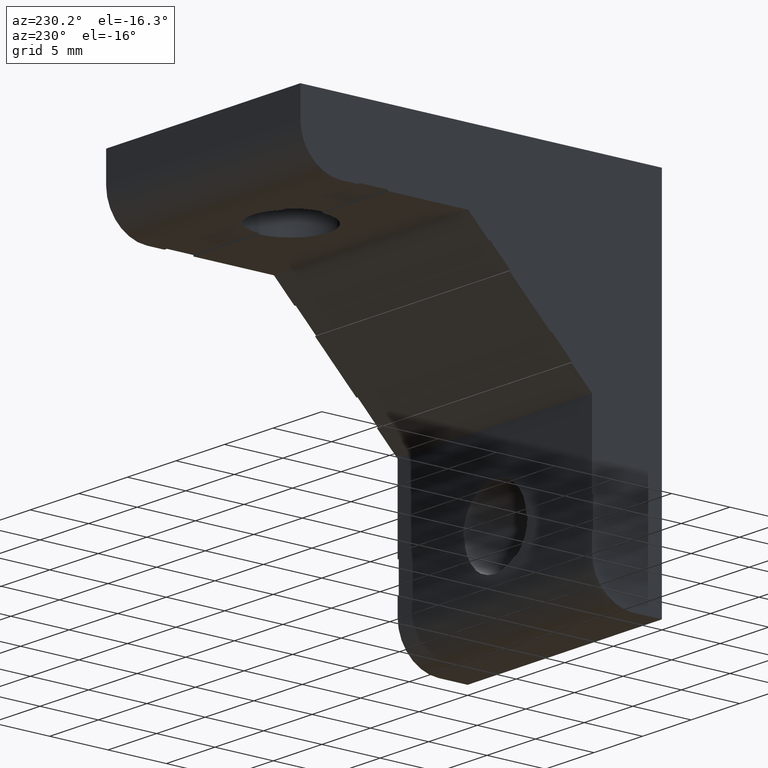
[diagram: clean part render]
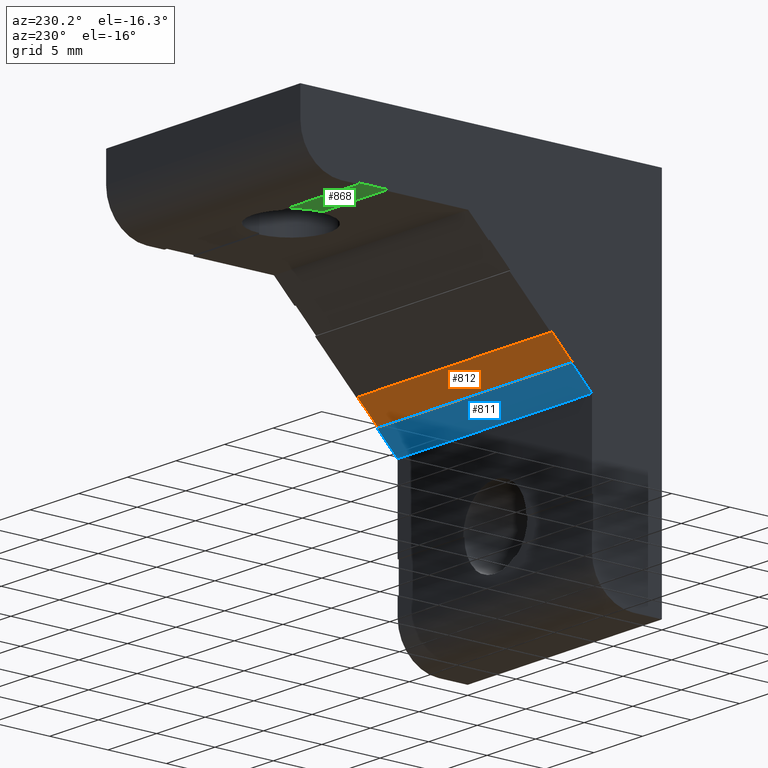
[diagram: same view with three faces highlighted in distinct colors, each labeled with its STEP entity id]
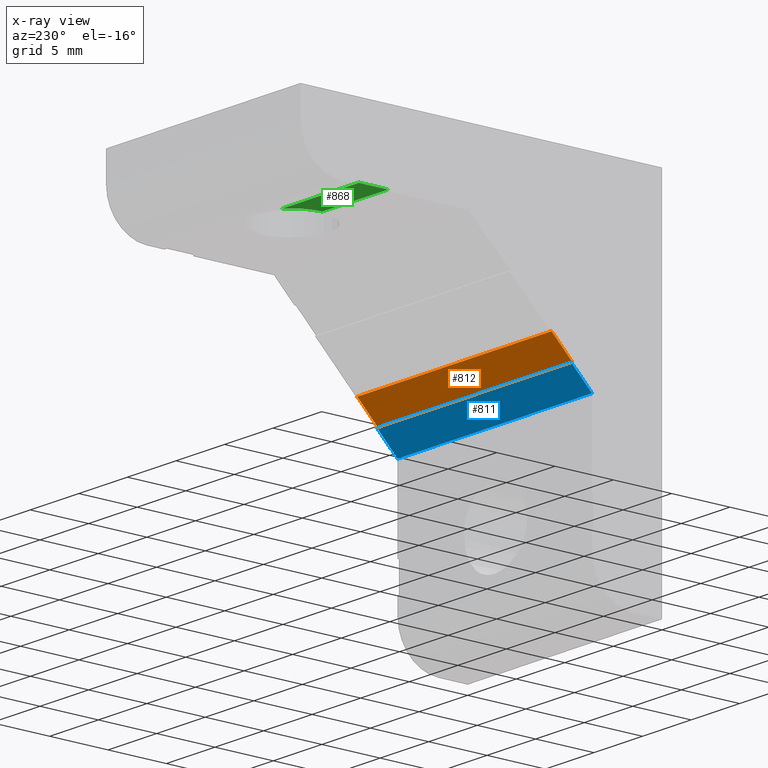
[diagram: x-ray of the same camera — body ghosted, the three highlighted faces saturated]
A machine part, auxiliary view with three faces highlighted in distinct colors.
The next image is the same camera in x-ray (body ghosted, the three faces saturated) — at least one of them is partly hidden behind the body in this view.
Their STEP definitions:

[orange] entity #812 — the highlighted planar face has unit normal (0, -0.7071, 0.7071).
#131 = LINE ( 'NONE', #658, #132 ) ;
#132 = VECTOR ( 'NONE', #659, 1000.000000000000000 ) ;
#143 = LINE ( 'NONE', #670, #144 ) ;
#144 = VECTOR ( 'NONE', #671, 1000.000000000000000 ) ;
#170 = FACE_OUTER_BOUND ( 'NONE', #1170, .T. ) ;
#204 = LINE ( 'NONE', #1009, #205 ) ;
#205 = VECTOR ( 'NONE', #1133, 1000.000000000000000 ) ;
#206 = LINE ( 'NONE', #580, #207 ) ;
#207 = VECTOR ( 'NONE', #581, 1000.000000000000000 ) ;
#256 = EDGE_CURVE ( 'NONE', #1070, #1063, #204, .T. ) ;
#257 = EDGE_CURVE ( 'NONE', #1069, #1064, #206, .T. ) ;
#317 = AXIS2_PLACEMENT_3D ( 'NONE', #431, #432, #433 ) ;
#319 = CARTESIAN_POINT ( 'NONE',  ( 0.0000000000000000000, 9.464823224250000800, -13.00035713024999900 ) ) ;
#320 = CARTESIAN_POINT ( 'NONE',  ( 20.00000000000000400, 9.464823228000000200, -13.00035713400000000 ) ) ;
#430 = PLANE ( 'NONE',  #317 ) ;
#431 = CARTESIAN_POINT ( 'NONE',  ( 0.0000000000000000000, 9.464823228000000200, -13.00035713400000000 ) ) ;
#432 = DIRECTION ( 'NONE',  ( 0.0000000000000000000, -0.7071067811865472400, 0.7071067811865479100 ) ) ;
#433 = DIRECTION ( 'NONE',  ( 0.0000000000000000000, -0.7071067811865479100, -0.7071067811865472400 ) ) ;
#573 = CARTESIAN_POINT ( 'NONE',  ( 20.00000000000000400, 7.697056274999999600, -14.76812408699999900 ) ) ;
#574 = CARTESIAN_POINT ( 'NONE',  ( 0.0000000000000000000, 7.697056278999999900, -14.76812409099999900 ) ) ;
#580 = CARTESIAN_POINT ( 'NONE',  ( 0.0000000000000000000, 9.464823218000004700, -13.00035712899999900 ) ) ;
#581 = DIRECTION ( 'NONE',  ( 0.0000000000000000000, -0.7071067749865480600, -0.7071067873865468600 ) ) ;
#658 = CARTESIAN_POINT ( 'NONE',  ( 10.00000000000000000, 7.697056274999999600, -14.76812408699999900 ) ) ;
#659 = DIRECTION ( 'NONE',  ( 1.000000000000000000, 0.0000000000000000000, 0.0000000000000000000 ) ) ;
#670 = CARTESIAN_POINT ( 'NONE',  ( 10.00000000000000000, 9.464823228000000200, -13.00035713400000000 ) ) ;
#671 = DIRECTION ( 'NONE',  ( -1.000000000000000000, -0.0000000000000000000, -0.0000000000000000000 ) ) ;
#785 = EDGE_CURVE ( 'NONE', #1064, #1063, #131, .T. ) ;
#791 = EDGE_CURVE ( 'NONE', #1070, #1069, #143, .T. ) ;
#812 = ADVANCED_FACE ( 'NONE', ( #170 ), #430, .F. ) ;
#1009 = CARTESIAN_POINT ( 'NONE',  ( 20.00000000000000700, 9.464823228000000200, -13.00035713400000000 ) ) ;
#1063 = VERTEX_POINT ( 'NONE', #573 ) ;
#1064 = VERTEX_POINT ( 'NONE', #574 ) ;
#1069 = VERTEX_POINT ( 'NONE', #319 ) ;
#1070 = VERTEX_POINT ( 'NONE', #320 ) ;
#1133 = DIRECTION ( 'NONE',  ( 0.0000000000000000000, -0.7071067811865479100, -0.7071067811865472400 ) ) ;
#1170 = EDGE_LOOP ( 'NONE', ( #1269, #1270, #1271, #1272 ) ) ;
#1269 = ORIENTED_EDGE ( 'NONE', *, *, #785, .F. ) ;
#1270 = ORIENTED_EDGE ( 'NONE', *, *, #257, .F. ) ;
#1271 = ORIENTED_EDGE ( 'NONE', *, *, #791, .F. ) ;
#1272 = ORIENTED_EDGE ( 'NONE', *, *, #256, .T. ) ;

[blue] entity #811 — the highlighted planar face has unit normal (0, 0.7071, -0.7071).
#135 = LINE ( 'NONE', #662, #136 ) ;
#136 = VECTOR ( 'NONE', #663, 1000.000000000000000 ) ;
#169 = FACE_OUTER_BOUND ( 'NONE', #1169, .T. ) ;
#198 = LINE ( 'NONE', #1000, #199 ) ;
#199 = VECTOR ( 'NONE', #1002, 1000.000000000000000 ) ;
#200 = LINE ( 'NONE', #999, #201 ) ;
#201 = VECTOR ( 'NONE', #1018, 1000.000000000000000 ) ;
#202 = LINE ( 'NONE', #1016, #203 ) ;
#203 = VECTOR ( 'NONE', #1017, 1000.000000000000000 ) ;
#253 = EDGE_CURVE ( 'NONE', #1065, #1048, #198, .T. ) ;
#254 = EDGE_CURVE ( 'NONE', #1066, #1047, #200, .T. ) ;
#255 = EDGE_CURVE ( 'NONE', #1048, #1047, #202, .T. ) ;
#316 = AXIS2_PLACEMENT_3D ( 'NONE', #427, #428, #429 ) ;
#426 = PLANE ( 'NONE',  #316 ) ;
#427 = CARTESIAN_POINT ( 'NONE',  ( 0.0000000000000000000, 6.000000000000000000, -16.60660171800000400 ) ) ;
#428 = DIRECTION ( 'NONE',  ( 0.0000000000000000000, 0.7071067811865487900, -0.7071067811865462400 ) ) ;
#429 = DIRECTION ( 'NONE',  ( 0.0000000000000000000, 0.7071067811865462400, 0.7071067811865487900 ) ) ;
#557 = CARTESIAN_POINT ( 'NONE',  ( 0.0000000000000000000, 5.999999997750001600, -16.60660172400000400 ) ) ;
#558 = CARTESIAN_POINT ( 'NONE',  ( 19.99999999999999600, 5.999999998500001700, -16.60660171950000600 ) ) ;
#575 = CARTESIAN_POINT ( 'NONE',  ( 19.99999999999999600, 7.767766952999998900, -14.83883476500000000 ) ) ;
#576 = CARTESIAN_POINT ( 'NONE',  ( 0.0000000000000000000, 7.767766955249999900, -14.83883476724999900 ) ) ;
#662 = CARTESIAN_POINT ( 'NONE',  ( 10.00000000000000000, 7.767766952999999800, -14.83883476500000000 ) ) ;
#663 = DIRECTION ( 'NONE',  ( 1.000000000000000000, 0.0000000000000000000, 0.0000000000000000000 ) ) ;
#787 = EDGE_CURVE ( 'NONE', #1066, #1065, #135, .T. ) ;
#811 = ADVANCED_FACE ( 'NONE', ( #169 ), #426, .T. ) ;
#996 = ORIENTED_EDGE ( 'NONE', *, *, #253, .T. ) ;
#997 = ORIENTED_EDGE ( 'NONE', *, *, #254, .F. ) ;
#998 = ORIENTED_EDGE ( 'NONE', *, *, #787, .T. ) ;
#999 = CARTESIAN_POINT ( 'NONE',  ( 0.0000000000000000000, 7.767766967999999200, -14.83883475900000100 ) ) ;
#1000 = CARTESIAN_POINT ( 'NONE',  ( 19.99999999999999300, 6.000000000000000000, -16.60660171800000400 ) ) ;
#1002 = DIRECTION ( 'NONE',  ( -0.0000000000000000000, -0.7071067811865463500, -0.7071067811865487900 ) ) ;
#1016 = CARTESIAN_POINT ( 'NONE',  ( 10.00000000000000000, 6.000000000000000000, -16.60660171800000400 ) ) ;
#1017 = DIRECTION ( 'NONE',  ( -1.000000000000000000, -0.0000000000000000000, -0.0000000000000000000 ) ) ;
#1018 = DIRECTION ( 'NONE',  ( 0.0000000000000000000, -0.7071067811865470200, -0.7071067811865481300 ) ) ;
#1047 = VERTEX_POINT ( 'NONE', #557 ) ;
#1048 = VERTEX_POINT ( 'NONE', #558 ) ;
#1065 = VERTEX_POINT ( 'NONE', #575 ) ;
#1066 = VERTEX_POINT ( 'NONE', #576 ) ;
#1169 = EDGE_LOOP ( 'NONE', ( #1273, #997, #998, #996 ) ) ;
#1273 = ORIENTED_EDGE ( 'NONE', *, *, #255, .T. ) ;

[green] entity #868 — the highlighted planar face has unit normal (-0, 0, 1).
#56 = ORIENTED_EDGE ( 'NONE', *, *, #274, .F. ) ;
#57 = ORIENTED_EDGE ( 'NONE', *, *, #286, .F. ) ;
#58 = ORIENTED_EDGE ( 'NONE', *, *, #779, .F. ) ;
#59 = ORIENTED_EDGE ( 'NONE', *, *, #281, .F. ) ;
#107 = LINE ( 'NONE', #634, #108 ) ;
#108 = VECTOR ( 'NONE', #635, 1000.000000000000000 ) ;
#117 = LINE ( 'NONE', #644, #118 ) ;
#118 = VECTOR ( 'NONE', #645, 1000.000000000000000 ) ;
#119 = LINE ( 'NONE', #646, #120 ) ;
#120 = VECTOR ( 'NONE', #647, 1000.000000000000000 ) ;
#237 = CIRCLE ( 'NONE', #297, 3.249999999999999600 ) ;
#274 = EDGE_CURVE ( 'NONE', #1041, #1085, #237, .T. ) ;
#281 = EDGE_CURVE ( 'NONE', #1085, #1082, #107, .T. ) ;
#286 = EDGE_CURVE ( 'NONE', #1083, #1041, #117, .T. ) ;
#297 = AXIS2_PLACEMENT_3D ( 'NONE', #617, #618, #619 ) ;
#332 = CARTESIAN_POINT ( 'NONE',  ( 0.0000000000000000000, 26.00000000000000700, -5.899999999999999500 ) ) ;
#333 = CARTESIAN_POINT ( 'NONE',  ( 0.0000000000000000000, 23.50000000000000400, -5.899999999999999500 ) ) ;
#335 = CARTESIAN_POINT ( 'NONE',  ( 7.923344034135242400, 26.00000000000000400, -5.899999999000000300 ) ) ;
#485 = PLANE ( 'NONE',  #827 ) ;
#486 = CARTESIAN_POINT ( 'NONE',  ( 0.0000000000000000000, 26.00000000000000400, -5.900000000000000400 ) ) ;
#487 = DIRECTION ( 'NONE',  ( -0.0000000000000000000, 0.0000000000000000000, 1.000000000000000000 ) ) ;
#488 = DIRECTION ( 'NONE',  ( 0.0000000000000000000, -1.000000000000000000, 0.0000000000000000000 ) ) ;
#551 = CARTESIAN_POINT ( 'NONE',  ( 6.750000000000000900, 23.50000000000000000, -5.899999999000000300 ) ) ;
#617 = CARTESIAN_POINT ( 'NONE',  ( 10.00000000000000000, 23.50000000000000000, -5.899999998000000200 ) ) ;
#618 = DIRECTION ( 'NONE',  ( 0.0000000000000000000, 0.0000000000000000000, -1.000000000000000000 ) ) ;
#619 = DIRECTION ( 'NONE',  ( -1.000000000000000000, 0.0000000000000000000, 0.0000000000000000000 ) ) ;
#634 = CARTESIAN_POINT ( 'NONE',  ( 3.985442049000000000, 26.00000000000000400, -5.900000000000000400 ) ) ;
#635 = DIRECTION ( 'NONE',  ( -1.000000000000000000, -0.0000000000000000000, -0.0000000000000000000 ) ) ;
#644 = CARTESIAN_POINT ( 'NONE',  ( 3.985442049000000000, 23.50000000000000000, -5.900000000000000400 ) ) ;
#645 = DIRECTION ( 'NONE',  ( 1.000000000000000000, 0.0000000000000000000, 0.0000000000000000000 ) ) ;
#646 = CARTESIAN_POINT ( 'NONE',  ( 0.0000000000000000000, 24.75000000000000000, -5.900000000000000400 ) ) ;
#647 = DIRECTION ( 'NONE',  ( 0.0000000000000000000, -1.000000000000000000, 0.0000000000000000000 ) ) ;
#779 = EDGE_CURVE ( 'NONE', #1082, #1083, #119, .T. ) ;
#827 = AXIS2_PLACEMENT_3D ( 'NONE', #486, #487, #488 ) ;
#868 = ADVANCED_FACE ( 'NONE', ( #889 ), #485, .F. ) ;
#889 = FACE_OUTER_BOUND ( 'NONE', #1188, .T. ) ;
#1041 = VERTEX_POINT ( 'NONE', #551 ) ;
#1082 = VERTEX_POINT ( 'NONE', #332 ) ;
#1083 = VERTEX_POINT ( 'NONE', #333 ) ;
#1085 = VERTEX_POINT ( 'NONE', #335 ) ;
#1188 = EDGE_LOOP ( 'NONE', ( #56, #57, #58, #59 ) ) ;